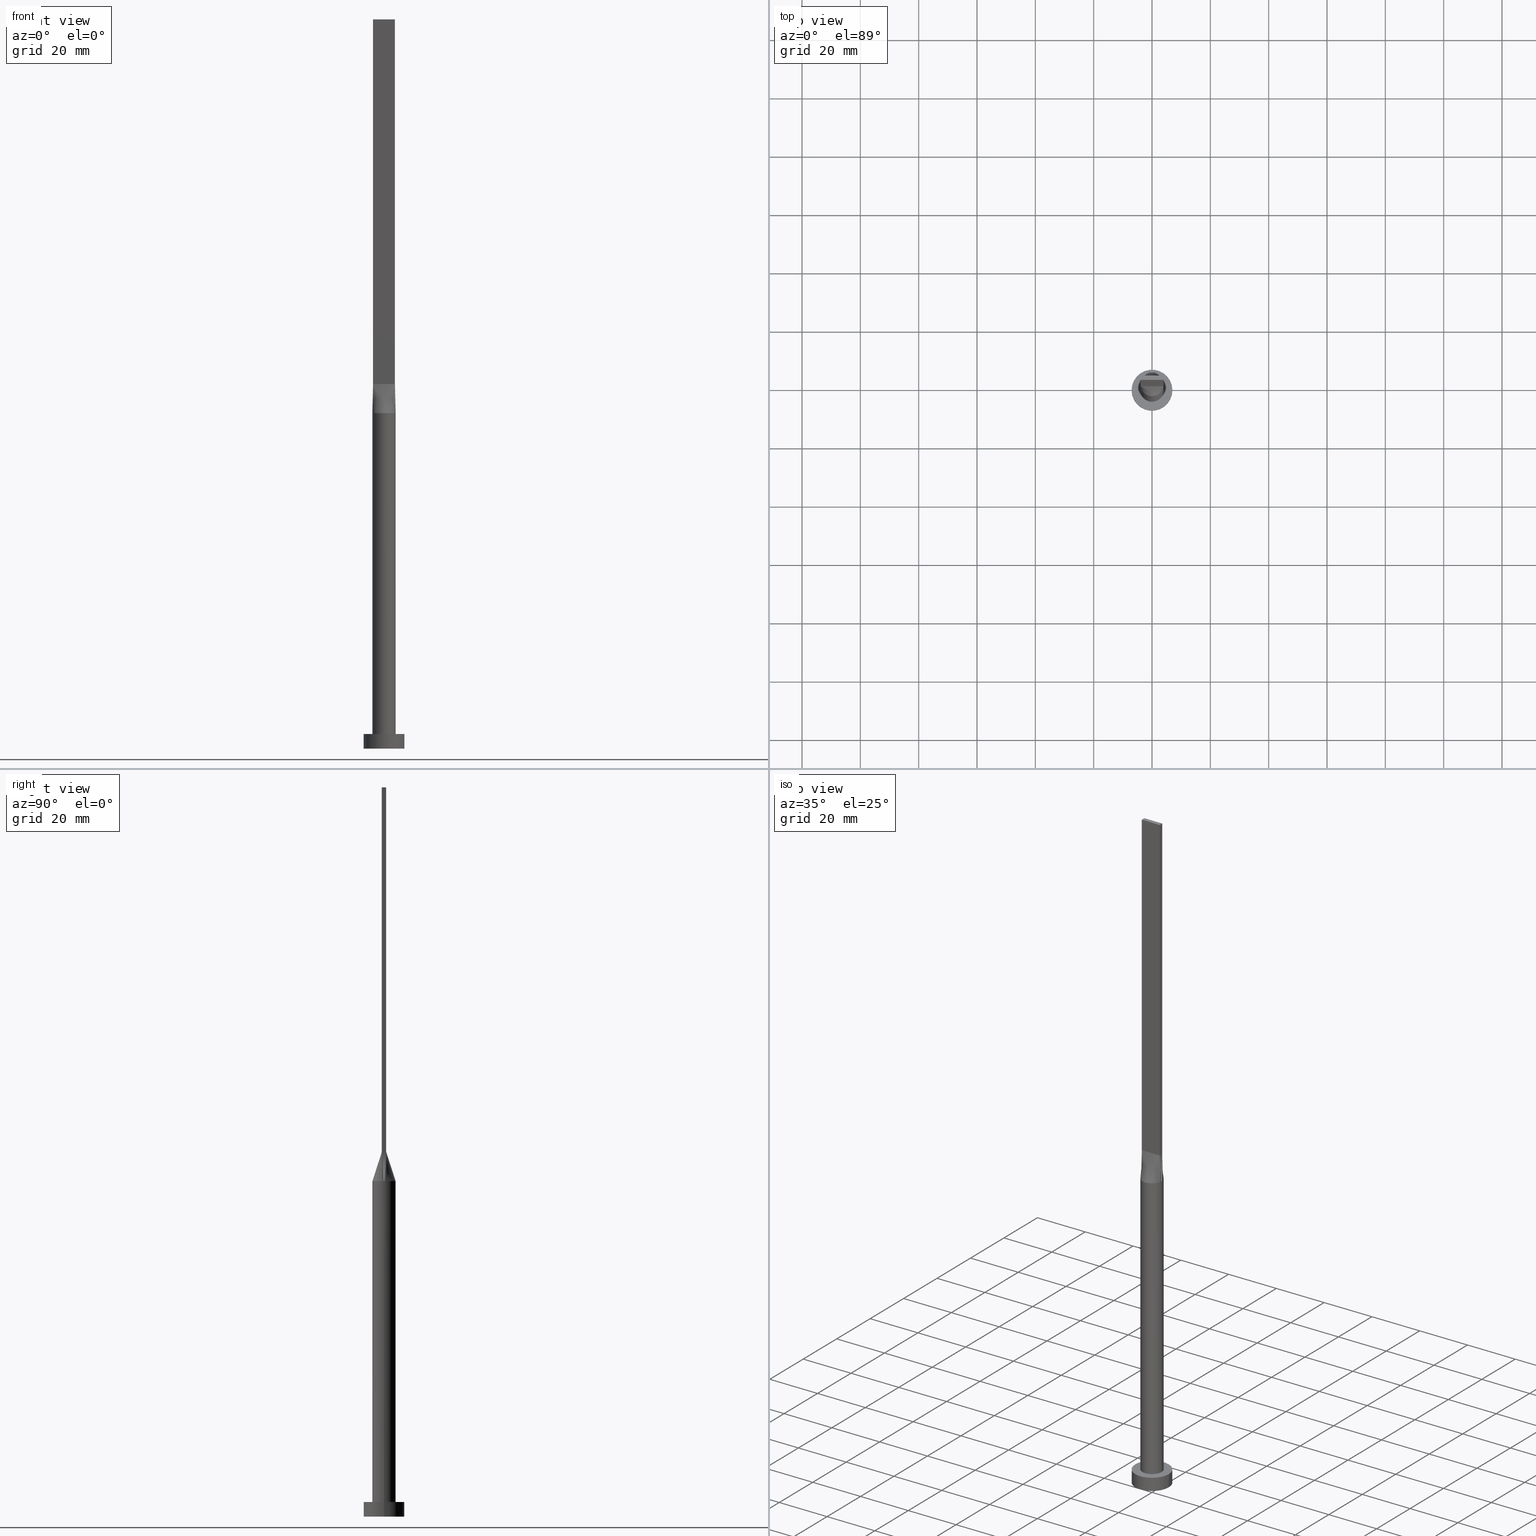
[diagram: canonical four-view strip — front | top / right | iso, engineering-drawing reading convention]
A machine part, canonical four-view strip (front | top / right | iso — engineering-drawing reading convention). The complete STEP part file that produces these views, byte-faithful:
ISO-10303-21;
HEADER;
FILE_DESCRIPTION (( 'STEP AP203' ),
    '1' );
FILE_NAME ('5bd1.STEP',
    '2026-02-12T09:03:20',
    ( '' ),
    ( '' ),
    'SwSTEP 2.0',
    'SolidWorks 2019',
    '' );
FILE_SCHEMA (( 'CONFIG_CONTROL_DESIGN' ));
ENDSEC;

DATA;
#1 = EDGE_CURVE ( 'NONE', #512, #462, #522, .T. ) ;
#2 = DIRECTION ( 'NONE',  ( 1.000000000000000000, 0.000000000000000000, 0.000000000000000000 ) ) ;
#3 = DIRECTION ( 'NONE',  ( 1.000000000000000000, 0.000000000000000000, 0.000000000000000000 ) ) ;
#4 = VECTOR ( 'NONE', #445, 1000.000000000000000 ) ;
#5 = AXIS2_PLACEMENT_3D ( 'NONE', #61, #251, #379 ) ;
#6 = FACE_OUTER_BOUND ( 'NONE', #451, .T. ) ;
#7 = EDGE_CURVE ( 'NONE', #567, #223, #100, .T. ) ;
#8 = CARTESIAN_POINT ( 'NONE',  ( -3.973604754045732435, 0.5280542841424794576, 115.0000000000000000 ) ) ;
#9 = ORIENTED_EDGE ( 'NONE', *, *, #76, .F. ) ;
#10 = CALENDAR_DATE ( 2026, 12, 2 ) ;
#11 = VECTOR ( 'NONE', #374, 1000.000000000000000 ) ;
#12 = CARTESIAN_POINT ( 'NONE',  ( 3.858220138661116128, 1.104977361065556440, 115.0000000000000000 ) ) ;
#13 = CARTESIAN_POINT ( 'NONE',  ( 3.922705552857197908, -0.7845410930675295047, 115.0000000000000000 ) ) ;
#14 = ORIENTED_EDGE ( 'NONE', *, *, #169, .F. ) ;
#15 = CARTESIAN_POINT ( 'NONE',  ( 0.000000000000000000, 0.000000000000000000, 0.000000000000000000 ) ) ;
#16 = VECTOR ( 'NONE', #218, 1000.000000000000000 ) ;
#17 = DIRECTION ( 'NONE',  ( -0.01722960997854780865, -0.003445921995709440040, -0.9998456211643809155 ) ) ;
#18 = CARTESIAN_POINT ( 'NONE',  ( 3.140797583654741487, -2.520780954342107805, 115.0000000000000426 ) ) ;
#19 = VERTEX_POINT ( 'NONE', #63 ) ;
#20 = VERTEX_POINT ( 'NONE', #504 ) ;
#21 = CALENDAR_DATE ( 2026, 12, 2 ) ;
#22 = CARTESIAN_POINT ( 'NONE',  ( -3.750000000000000000, 0.7500000000000002220, 250.0000000000000000 ) ) ;
#23 = VECTOR ( 'NONE', #65, 1000.000000000000000 ) ;
#24 = FACE_OUTER_BOUND ( 'NONE', #59, .T. ) ;
#25 = APPROVAL_ROLE ( '' ) ;
#26 = CARTESIAN_POINT ( 'NONE',  ( 1.250000000000001554, -0.7499999999999995559, 125.0000000000000000 ) ) ;
#27 = EDGE_LOOP ( 'NONE', ( #158, #580, #336, #488 ) ) ;
#28 = DIRECTION ( 'NONE',  ( 0.000000000000000000, 0.000000000000000000, 1.000000000000000000 ) ) ;
#29 =( NAMED_UNIT ( * ) PLANE_ANGLE_UNIT ( ) SI_UNIT ( $, .RADIAN. ) );
#30 = CC_DESIGN_PERSON_AND_ORGANIZATION_ASSIGNMENT ( #332, #452, ( #88 ) ) ;
#31 = ORIENTED_EDGE ( 'NONE', *, *, #576, .T. ) ;
#32 = DIRECTION ( 'NONE',  ( 0.000000000000000000, 0.000000000000000000, 1.000000000000000000 ) ) ;
#33 = DIRECTION ( 'NONE',  ( 0.000000000000000000, 0.000000000000000000, 1.000000000000000000 ) ) ;
#34 = FACE_OUTER_BOUND ( 'NONE', #146, .T. ) ;
#35 = CARTESIAN_POINT ( 'NONE',  ( 3.390424152328988416, -2.159240079384420419, 115.0000000000000711 ) ) ;
#36 = CARTESIAN_POINT ( 'NONE',  ( -3.125000000000000000, 0.7500000000000002220, 125.0000000000000000 ) ) ;
#37 = LOCAL_TIME ( 10, 3, 20.00000000000000000, #194 ) ;
#38 = CC_DESIGN_DATE_AND_TIME_ASSIGNMENT ( #513, #110, ( #88 ) ) ;
#39 = DIRECTION ( 'NONE',  ( -0.000000000000000000, -0.000000000000000000, -1.000000000000000000 ) ) ;
#40 = CARTESIAN_POINT ( 'NONE',  ( 3.437500000000000000, 0.7500000000000003331, 125.0000000000000000 ) ) ;
#41 = ORIENTED_EDGE ( 'NONE', *, *, #455, .T. ) ;
#42 = DIRECTION ( 'NONE',  ( 0.000000000000000000, 0.000000000000000000, 1.000000000000000000 ) ) ;
#43 = VERTEX_POINT ( 'NONE', #560 ) ;
#44 = CARTESIAN_POINT ( 'NONE',  ( 1.250000000000000000, 0.7500000000000002220, 125.0000000000000000 ) ) ;
#45 = CARTESIAN_POINT ( 'NONE',  ( 3.749999999999999556, 0.2500000000000009437, 125.0000000000000000 ) ) ;
#46 = CARTESIAN_POINT ( 'NONE',  ( 0.000000000000000000, 0.000000000000000000, 115.0000000000000000 ) ) ;
#47 = DIRECTION ( 'NONE',  ( 0.000000000000000000, 1.000000000000000000, 0.000000000000000000 ) ) ;
#48 = CIRCLE ( 'NONE', #373, 4.000000000000000000 ) ;
#49 = CARTESIAN_POINT ( 'NONE',  ( -3.749999999999999556, -0.2500000000000005551, 125.0000000000000000 ) ) ;
#50 = EDGE_CURVE ( 'NONE', #254, #19, #151, .T. ) ;
#51 =( GEOMETRIC_REPRESENTATION_CONTEXT ( 3 ) GLOBAL_UNCERTAINTY_ASSIGNED_CONTEXT ( ( #415 ) ) GLOBAL_UNIT_ASSIGNED_CONTEXT ( ( #170, #29, #212 ) ) REPRESENTATION_CONTEXT ( 'NONE', 'WORKASPACE' ) );
#52 = CARTESIAN_POINT ( 'NONE',  ( -3.922322702763681335, 0.7844645405527354010, 115.0000000000000000 ) ) ;
#53 = DIRECTION ( 'NONE',  ( -0.000000000000000000, -0.000000000000000000, -1.000000000000000000 ) ) ;
#54 = CARTESIAN_POINT ( 'NONE',  ( 0.000000000000000000, 0.000000000000000000, 5.000000000000000000 ) ) ;
#55 = EDGE_LOOP ( 'NONE', ( #164, #468, #330, #376 ) ) ;
#56 = APPROVAL_DATE_TIME ( #107, #60 ) ;
#57 = CARTESIAN_POINT ( 'NONE',  ( 3.390424152328985752, 2.159240079384420419, 115.0000000000000284 ) ) ;
#58 = CARTESIAN_POINT ( 'NONE',  ( -3.748423346357938168, -1.451418640363467683, 115.0000000000000426 ) ) ;
#59 = EDGE_LOOP ( 'NONE', ( #543, #530, #96, #294, #70, #193 ) ) ;
#60 = APPROVAL ( #554, 'NEUR�EN�' ) ;
#61 = CARTESIAN_POINT ( 'NONE',  ( 0.000000000000000000, 0.000000000000000000, 5.000000000000000000 ) ) ;
#62 = DATE_AND_TIME ( #10, #272 ) ;
#63 = CARTESIAN_POINT ( 'NONE',  ( -3.750000000000000000, -0.7499999999999993339, 125.0000000000000000 ) ) ;
#64 = CARTESIAN_POINT ( 'NONE',  ( -2.055729527861833272, -3.471178582471582175, 115.0000000000000142 ) ) ;
#65 = DIRECTION ( 'NONE',  ( -0.000000000000000000, -0.000000000000000000, -1.000000000000000000 ) ) ;
#66 = CARTESIAN_POINT ( 'NONE',  ( 2.055729527861832828, -3.471178582471583063, 115.0000000000000284 ) ) ;
#67 = ORIENTED_EDGE ( 'NONE', *, *, #299, .T. ) ;
#68 = EDGE_CURVE ( 'NONE', #280, #43, #412, .T. ) ;
#69 = DIRECTION ( 'NONE',  ( -1.000000000000000000, 5.782411586589357392E-17, 0.000000000000000000 ) ) ;
#70 = ORIENTED_EDGE ( 'NONE', *, *, #76, .T. ) ;
#71 = DIRECTION ( 'NONE',  ( 1.000000000000000000, 0.000000000000000000, -0.000000000000000000 ) ) ;
#72 = DIRECTION ( 'NONE',  ( 5.782411586589357392E-17, 1.000000000000000000, -0.000000000000000000 ) ) ;
#73 = CARTESIAN_POINT ( 'NONE',  ( 0.6249999999999996669, 0.7500000000000002220, 125.0000000000000000 ) ) ;
#74 = CARTESIAN_POINT ( 'NONE',  ( -3.750000000000000000, -0.7499999999999993339, 250.0000000000000000 ) ) ;
#75 = FACE_OUTER_BOUND ( 'NONE', #27, .T. ) ;
#76 = EDGE_CURVE ( 'NONE', #106, #549, #117, .T. ) ;
#77 = CARTESIAN_POINT ( 'NONE',  ( 4.000000000000000000, 4.898587196589412829E-16, 115.0000000000000000 ) ) ;
#78 = CARTESIAN_POINT ( 'NONE',  ( 3.750000000000000000, -0.7499999999999997780, 125.0000000000000000 ) ) ;
#79 = LINE ( 'NONE', #171, #16 ) ;
#80 = ORIENTED_EDGE ( 'NONE', *, *, #576, .F. ) ;
#81 = DIRECTION ( 'NONE',  ( -1.000000000000000000, 0.000000000000000000, 0.000000000000000000 ) ) ;
#82 = VECTOR ( 'NONE', #94, 1000.000000000000000 ) ;
#83 = EDGE_CURVE ( 'NONE', #297, #254, #252, .T. ) ;
#84 = CARTESIAN_POINT ( 'NONE',  ( -0.5465359351457050874, 4.000000000000000000, 115.0000000000000000 ) ) ;
#85 = VERTEX_POINT ( 'NONE', #378 ) ;
#86 = DIRECTION ( 'NONE',  ( 0.000000000000000000, 0.000000000000000000, 1.000000000000000000 ) ) ;
#87 = VECTOR ( 'NONE', #98, 1000.000000000000000 ) ;
#88 = SECURITY_CLASSIFICATION ( '', '', #155 ) ;
#89 = PLANE ( 'NONE',  #216 ) ;
#90 = CARTESIAN_POINT ( 'NONE',  ( -3.858220138661117460, 1.104977361065555996, 115.0000000000000284 ) ) ;
#91 = ORIENTED_EDGE ( 'NONE', *, *, #434, .F. ) ;
#92 = CARTESIAN_POINT ( 'NONE',  ( 3.999245779686757984, -0.2640271420712401729, 115.0000000000000000 ) ) ;
#93 = EDGE_CURVE ( 'NONE', #19, #85, #282, .T. ) ;
#94 = DIRECTION ( 'NONE',  ( -0.01722960997854780865, -0.003445921995709396671, 0.9998456211643809155 ) ) ;
#95 = CARTESIAN_POINT ( 'NONE',  ( 0.000000000000000000, 0.000000000000000000, 5.000000000000000000 ) ) ;
#96 = ORIENTED_EDGE ( 'NONE', *, *, #269, .F. ) ;
#97 = COORDINATED_UNIVERSAL_TIME_OFFSET ( 1, 0, .AHEAD. ) ;
#98 = DIRECTION ( 'NONE',  ( 1.000000000000000000, -5.782411586589357392E-17, 0.000000000000000000 ) ) ;
#99 = ORIENTED_EDGE ( 'NONE', *, *, #393, .T. ) ;
#100 = LINE ( 'NONE', #322, #558 ) ;
#101 = PERSON_AND_ORGANIZATION ( #122, #132 ) ;
#102 = ADVANCED_FACE ( 'NONE', ( #420 ), #340, .T. ) ;
#103 = CARTESIAN_POINT ( 'NONE',  ( -7.000000000000000000, 0.000000000000000000, 5.000000000000000000 ) ) ;
#104 = CARTESIAN_POINT ( 'NONE',  ( 0.000000000000000000, 0.000000000000000000, 115.0000000000000000 ) ) ;
#105 = ORIENTED_EDGE ( 'NONE', *, *, #83, .T. ) ;
#106 = VERTEX_POINT ( 'NONE', #453 ) ;
#107 = DATE_AND_TIME ( #459, #197 ) ;
#108 = AXIS2_PLACEMENT_3D ( 'NONE', #276, #191, #364 ) ;
#109 = DIRECTION ( 'NONE',  ( -0.000000000000000000, -0.000000000000000000, -1.000000000000000000 ) ) ;
#110 = DATE_TIME_ROLE ( 'classification_date' ) ;
#111 = DESIGN_CONTEXT ( 'detailed design', #428, 'design' ) ;
#112 = CIRCLE ( 'NONE', #546, 4.000000000000000000 ) ;
#113 = VECTOR ( 'NONE', #201, 1000.000000000000000 ) ;
#114 = CARTESIAN_POINT ( 'NONE',  ( -3.437499999999999556, -0.7499999999999993339, 125.0000000000000000 ) ) ;
#115 = ORIENTED_EDGE ( 'NONE', *, *, #50, .T. ) ;
#116 = ORIENTED_EDGE ( 'NONE', *, *, #220, .T. ) ;
#117 = LINE ( 'NONE', #295, #23 ) ;
#118 = CARTESIAN_POINT ( 'NONE',  ( 0.000000000000000000, 0.000000000000000000, 5.000000000000000000 ) ) ;
#119 = ORIENTED_EDGE ( 'NONE', *, *, #68, .F. ) ;
#120 = CC_DESIGN_DATE_AND_TIME_ASSIGNMENT ( #449, #200, ( #240 ) ) ;
#121 = CARTESIAN_POINT ( 'NONE',  ( -2.474203369347176107, -3.177619198138197820, 115.0000000000000000 ) ) ;
#122 = PERSON ( 'NEUR�EN�', 'NEUR�EN�', 'NEUR�EN�', ('NEUR�EN�'), ('NEUR�EN�'), ('NEUR�EN�') ) ;
#123 = B_SPLINE_SURFACE_WITH_KNOTS ( 'NONE', 3, 1, ( 
 ( #222, #429 ),
 ( #426, #40 ),
 ( #177, #569 ),
 ( #303, #481 ),
 ( #215, #267 ),
 ( #577, #345 ),
 ( #437, #44 ),
 ( #301, #73 ),
 ( #390, #128 ),
 ( #259, #134 ),
 ( #219, #432 ),
 ( #574, #350 ),
 ( #524, #389 ),
 ( #528, #130 ),
 ( #175, #486 ),
 ( #352, #36 ),
 ( #174, #168 ),
 ( #307, #483 ) ),
 .UNSPECIFIED., .F., .F., .F.,
 ( 4, 2, 2, 2, 2, 2, 2, 2, 4 ),
 ( 2, 2 ),
 ( 0.000000000000000000, 0.1249999999999999167, 0.2499999999999998890, 0.3749999999999998335, 0.4999999999999998890, 0.6249999999999998890, 0.7499999999999998890, 0.8750000000000000000, 1.000000000000000000 ),
 ( 0.000000000000000000, 1.000000000000000000 ),
 .UNSPECIFIED. ) ;
#124 = CARTESIAN_POINT ( 'NONE',  ( 3.922322702763681335, -0.7844645405527340687, 115.0000000000000000 ) ) ;
#125 = DIRECTION ( 'NONE',  ( 1.000000000000000000, 0.000000000000000000, 0.000000000000000000 ) ) ;
#126 = PRODUCT_RELATED_PRODUCT_CATEGORY ( 'detail', '', ( #561 ) ) ;
#127 = CARTESIAN_POINT ( 'NONE',  ( 3.750000000000000000, 0.7500000000000002220, 250.0000000000000000 ) ) ;
#128 = CARTESIAN_POINT ( 'NONE',  ( 0.3124999999999991673, 0.7500000000000003331, 125.0000000000000000 ) ) ;
#129 = CARTESIAN_POINT ( 'NONE',  ( 3.750000000000000000, 0.7500000000000002220, 250.0000000000000000 ) ) ;
#130 = CARTESIAN_POINT ( 'NONE',  ( -2.187500000000000000, 0.7500000000000002220, 125.0000000000000000 ) ) ;
#131 = CIRCLE ( 'NONE', #147, 4.000000000000000000 ) ;
#132 = ORGANIZATION ( 'NEUR�EN�', 'NEUR�EN�', '' ) ;
#133 = ORIENTED_EDGE ( 'NONE', *, *, #398, .F. ) ;
#134 = CARTESIAN_POINT ( 'NONE',  ( -0.3125000000000009437, 0.7500000000000003331, 125.0000000000000000 ) ) ;
#135 = CC_DESIGN_PERSON_AND_ORGANIZATION_ASSIGNMENT ( #293, #285, ( #240 ) ) ;
#136 = EDGE_LOOP ( 'NONE', ( #199, #153, #116, #99 ) ) ;
#137 = DIRECTION ( 'NONE',  ( 1.000000000000000000, 0.000000000000000000, -0.000000000000000000 ) ) ;
#138 = CARTESIAN_POINT ( 'NONE',  ( -3.922691944042750123, 0.7845383302616953936, 115.0000000000000000 ) ) ;
#139 = CARTESIAN_POINT ( 'NONE',  ( 3.999245779686757984, 0.2640271420712392292, 115.0000000000000000 ) ) ;
#140 = APPROVAL_PERSON_ORGANIZATION ( #559, #310, #159 ) ;
#141 = EDGE_CURVE ( 'NONE', #458, #356, #430, .T. ) ;
#142 = CARTESIAN_POINT ( 'NONE',  ( -3.922322702763681335, -0.7844645405527344018, 115.0000000000000000 ) ) ;
#143 = CARTESIAN_POINT ( 'NONE',  ( 2.055729527861830608, 3.471178582471582619, 114.9999999999999858 ) ) ;
#144 = CARTESIAN_POINT ( 'NONE',  ( -3.922691944042750123, 0.7845383302616953936, 115.0000000000000000 ) ) ;
#145 = DIRECTION ( 'NONE',  ( 1.000000000000000000, 0.000000000000000000, 0.000000000000000000 ) ) ;
#146 = EDGE_LOOP ( 'NONE', ( #287, #133 ) ) ;
#147 = AXIS2_PLACEMENT_3D ( 'NONE', #225, #33, #383 ) ;
#148 = CIRCLE ( 'NONE', #290, 4.000000000000000000 ) ;
#149 = CARTESIAN_POINT ( 'NONE',  ( -1.562499999999998446, -0.7499999999999993339, 125.0000000000000000 ) ) ;
#150 = ADVANCED_FACE ( 'NONE', ( #184 ), #181, .T. ) ;
#151 = LINE ( 'NONE', #471, #204 ) ;
#152 = DIRECTION ( 'NONE',  ( 1.000000000000000000, 0.000000000000000000, 0.000000000000000000 ) ) ;
#153 = ORIENTED_EDGE ( 'NONE', *, *, #469, .T. ) ;
#154 = ORIENTED_EDGE ( 'NONE', *, *, #269, .T. ) ;
#155 = SECURITY_CLASSIFICATION_LEVEL ( 'unclassified' ) ;
#156 = VECTOR ( 'NONE', #39, 1000.000000000000000 ) ;
#157 = LINE ( 'NONE', #375, #291 ) ;
#158 = ORIENTED_EDGE ( 'NONE', *, *, #141, .T. ) ;
#159 = APPROVAL_ROLE ( '' ) ;
#160 = CARTESIAN_POINT ( 'NONE',  ( -0.3124999999999987788, -0.7499999999999993339, 125.0000000000000000 ) ) ;
#161 = ORIENTED_EDGE ( 'NONE', *, *, #50, .F. ) ;
#162 = EDGE_CURVE ( 'NONE', #462, #458, #48, .T. ) ;
#163 = PERSON_AND_ORGANIZATION ( #122, #132 ) ;
#164 = ORIENTED_EDGE ( 'NONE', *, *, #355, .T. ) ;
#165 = CARTESIAN_POINT ( 'NONE',  ( -3.750000000000000000, -0.7499999999999993339, 125.0000000000000000 ) ) ;
#166 = VECTOR ( 'NONE', #579, 1000.000000000000000 ) ;
#167 = CARTESIAN_POINT ( 'NONE',  ( 3.750000000000000000, -0.7499999999999997780, 250.0000000000000000 ) ) ;
#168 = CARTESIAN_POINT ( 'NONE',  ( -3.437500000000000000, 0.7500000000000002220, 125.0000000000000000 ) ) ;
#169 = EDGE_CURVE ( 'NONE', #367, #19, #537, .T. ) ;
#170 =( LENGTH_UNIT ( ) NAMED_UNIT ( * ) SI_UNIT ( .MILLI., .METRE. ) );
#171 = CARTESIAN_POINT ( 'NONE',  ( 3.750000000000000000, 0.7500000000000002220, 250.0000000000000000 ) ) ;
#172 = DIRECTION ( 'NONE',  ( 0.000000000000000000, 0.000000000000000000, 1.000000000000000000 ) ) ;
#173 = CARTESIAN_POINT ( 'NONE',  ( 2.500000000000000444, -0.7499999999999996669, 125.0000000000000000 ) ) ;
#174 = CARTESIAN_POINT ( 'NONE',  ( -3.858220138661117460, 1.104977361065555996, 115.0000000000000284 ) ) ;
#175 = CARTESIAN_POINT ( 'NONE',  ( -3.390424152328988416, 2.159240079384419975, 115.0000000000000284 ) ) ;
#176 = ORIENTED_EDGE ( 'NONE', *, *, #369, .T. ) ;
#177 = CARTESIAN_POINT ( 'NONE',  ( 3.748423346357935948, 1.451418640363468349, 115.0000000000000142 ) ) ;
#178 = VECTOR ( 'NONE', #519, 1000.000000000000000 ) ;
#179 = ORIENTED_EDGE ( 'NONE', *, *, #93, .F. ) ;
#180 = CARTESIAN_POINT ( 'NONE',  ( -3.999245779686757984, -0.2640271420712390071, 115.0000000000000000 ) ) ;
#181 = CYLINDRICAL_SURFACE ( 'NONE', #433, 7.000000000000000000 ) ;
#182 = CARTESIAN_POINT ( 'NONE',  ( -2.055729527861832828, 3.471178582471583063, 114.9999999999999432 ) ) ;
#183 = CARTESIAN_POINT ( 'NONE',  ( 3.750000000000000000, -0.7499999999999997780, 250.0000000000000000 ) ) ;
#184 = FACE_OUTER_BOUND ( 'NONE', #440, .T. ) ;
#185 = EDGE_CURVE ( 'NONE', #462, #532, #388, .T. ) ;
#186 = CARTESIAN_POINT ( 'NONE',  ( -3.750000000000000000, -0.7499999999999993339, 125.0000000000000000 ) ) ;
#187 = CIRCLE ( 'NONE', #517, 7.000000000000000000 ) ;
#188 = AXIS2_PLACEMENT_3D ( 'NONE', #104, #505, #372 ) ;
#189 = CARTESIAN_POINT ( 'NONE',  ( -3.749999999999999556, 0.2499999999999993061, 125.0000000000000000 ) ) ;
#190 = DIRECTION ( 'NONE',  ( 1.000000000000000000, 0.000000000000000000, 0.000000000000000000 ) ) ;
#191 = DIRECTION ( 'NONE',  ( 0.000000000000000000, 0.000000000000000000, 1.000000000000000000 ) ) ;
#192 = CARTESIAN_POINT ( 'NONE',  ( -3.858220138661117460, -1.104977361065555774, 114.9999999999999858 ) ) ;
#193 = ORIENTED_EDGE ( 'NONE', *, *, #338, .T. ) ;
#194 = COORDINATED_UNIVERSAL_TIME_OFFSET ( 1, 0, .AHEAD. ) ;
#195 = B_SPLINE_SURFACE_WITH_KNOTS ( 'NONE', 3, 1, ( 
 ( #457, #165 ),
 ( #192, #114 ),
 ( #58, #292 ),
 ( #241, #466 ),
 ( #521, #337 ),
 ( #121, #149 ),
 ( #64, #562 ),
 ( #242, #406 ),
 ( #370, #160 ),
 ( #198, #333 ),
 ( #324, #296 ),
 ( #66, #26 ),
 ( #366, #298 ),
 ( #18, #568 ),
 ( #35, #173 ),
 ( #257, #523 ),
 ( #214, #302 ),
 ( #124, #344 ) ),
 .UNSPECIFIED., .F., .F., .F.,
 ( 4, 2, 2, 2, 2, 2, 2, 2, 4 ),
 ( 2, 2 ),
 ( 0.000000000000000000, 0.1249999999999999722, 0.2500000000000000000, 0.3750000000000000000, 0.5000000000000001110, 0.6250000000000001110, 0.7500000000000000000, 0.8750000000000000000, 1.000000000000000000 ),
 ( 0.000000000000000000, 1.000000000000000000 ),
 .UNSPECIFIED. ) ;
#196 = ADVANCED_FACE ( 'NONE', ( #34 ), #262, .F. ) ;
#197 = LOCAL_TIME ( 10, 3, 20.00000000000000000, #281 ) ;
#198 = CARTESIAN_POINT ( 'NONE',  ( 0.5465359351457046433, -4.000000000000000888, 115.0000000000000284 ) ) ;
#199 = ORIENTED_EDGE ( 'NONE', *, *, #288, .T. ) ;
#200 = DATE_TIME_ROLE ( 'creation_date' ) ;
#201 = DIRECTION ( 'NONE',  ( -0.01722960997854780865, 0.003445921995709364145, 0.9998456211643809155 ) ) ;
#202 = EDGE_LOOP ( 'NONE', ( #176, #256, #179, #161, #266 ) ) ;
#203 = DIRECTION ( 'NONE',  ( 0.000000000000000000, 0.000000000000000000, 1.000000000000000000 ) ) ;
#204 = VECTOR ( 'NONE', #326, 1000.000000000000000 ) ;
#205 = EDGE_CURVE ( 'NONE', #458, #297, #503, .T. ) ;
#206 = CARTESIAN_POINT ( 'NONE',  ( 0.000000000000000000, 0.000000000000000000, 5.000000000000000000 ) ) ;
#207 = DATE_AND_TIME ( #277, #401 ) ;
#208 = AXIS2_PLACEMENT_3D ( 'NONE', #54, #392, #3 ) ;
#209 = DIRECTION ( 'NONE',  ( -1.000000000000000000, -0.000000000000000000, -0.000000000000000000 ) ) ;
#210 = LINE ( 'NONE', #410, #178 ) ;
#211 = VERTEX_POINT ( 'NONE', #304 ) ;
#212 =( NAMED_UNIT ( * ) SI_UNIT ( $, .STERADIAN. ) SOLID_ANGLE_UNIT ( ) );
#213 = ADVANCED_FACE ( 'NONE', ( #526 ), #531, .F. ) ;
#214 = CARTESIAN_POINT ( 'NONE',  ( 3.858220138661117016, -1.104977361065556662, 115.0000000000000142 ) ) ;
#215 = CARTESIAN_POINT ( 'NONE',  ( 3.140797583654741931, 2.520780954342106028, 114.9999999999999858 ) ) ;
#216 = AXIS2_PLACEMENT_3D ( 'NONE', #95, #230, #137 ) ;
#217 = FACE_OUTER_BOUND ( 'NONE', #557, .T. ) ;
#218 = DIRECTION ( 'NONE',  ( -1.000000000000000000, 0.000000000000000000, 0.000000000000000000 ) ) ;
#219 = CARTESIAN_POINT ( 'NONE',  ( -1.091295599582913445, 3.883835547170275682, 115.0000000000000142 ) ) ;
#220 = EDGE_CURVE ( 'NONE', #367, #567, #348, .T. ) ;
#221 = ORIENTED_EDGE ( 'NONE', *, *, #398, .T. ) ;
#222 = CARTESIAN_POINT ( 'NONE',  ( 3.922322702763680446, 0.7844645405527360671, 115.0000000000000000 ) ) ;
#223 = VERTEX_POINT ( 'NONE', #78 ) ;
#224 = CIRCLE ( 'NONE', #446, 4.000000000000000000 ) ;
#225 = CARTESIAN_POINT ( 'NONE',  ( 0.000000000000000000, 0.000000000000000000, 115.0000000000000000 ) ) ;
#226 = DIRECTION ( 'NONE',  ( 0.000000000000000000, 0.000000000000000000, 1.000000000000000000 ) ) ;
#227 = AXIS2_PLACEMENT_3D ( 'NONE', #118, #566, #403 ) ;
#228 = VECTOR ( 'NONE', #461, 1000.000000000000000 ) ;
#229 = CARTESIAN_POINT ( 'NONE',  ( 0.5465359351457045323, 4.000000000000000888, 115.0000000000000426 ) ) ;
#230 = DIRECTION ( 'NONE',  ( 0.000000000000000000, 0.000000000000000000, 1.000000000000000000 ) ) ;
#231 = DIRECTION ( 'NONE',  ( 1.000000000000000000, 0.000000000000000000, 0.000000000000000000 ) ) ;
#232 = CC_DESIGN_PERSON_AND_ORGANIZATION_ASSIGNMENT ( #365, #408, ( #525 ) ) ;
#233 = CARTESIAN_POINT ( 'NONE',  ( -3.390424152328988416, 2.159240079384419975, 115.0000000000000284 ) ) ;
#234 = CARTESIAN_POINT ( 'NONE',  ( 3.750000000000000000, 0.7500000000000002220, 125.0000000000000000 ) ) ;
#235 = LINE ( 'NONE', #413, #113 ) ;
#236 = VECTOR ( 'NONE', #382, 1000.000000000000000 ) ;
#237 = CARTESIAN_POINT ( 'NONE',  ( -3.750000000000000000, 0.7500000000000002220, 125.0000000000000000 ) ) ;
#238 = ORIENTED_EDGE ( 'NONE', *, *, #1, .T. ) ;
#239 = APPROVAL_STATUS ( 'not_yet_approved' ) ;
#240 = PRODUCT_DEFINITION ( 'NEZN�M�', '', #525, #111 ) ;
#241 = CARTESIAN_POINT ( 'NONE',  ( -3.390424152328987528, -2.159240079384418642, 114.9999999999999858 ) ) ;
#242 = CARTESIAN_POINT ( 'NONE',  ( -1.091295599582913445, -3.883835547170274349, 114.9999999999999858 ) ) ;
#243 = ORIENTED_EDGE ( 'NONE', *, *, #529, .F. ) ;
#244 = ORIENTED_EDGE ( 'NONE', *, *, #369, .F. ) ;
#245 = APPROVAL_STATUS ( 'not_yet_approved' ) ;
#246 = AXIS2_PLACEMENT_3D ( 'NONE', #263, #309, #81 ) ;
#247 = DIRECTION ( 'NONE',  ( 0.000000000000000000, 0.000000000000000000, 1.000000000000000000 ) ) ;
#248 = ORIENTED_EDGE ( 'NONE', *, *, #393, .F. ) ;
#249 = APPROVAL_DATE_TIME ( #62, #424 ) ;
#250 = EDGE_CURVE ( 'NONE', #106, #85, #148, .T. ) ;
#251 = DIRECTION ( 'NONE',  ( 0.000000000000000000, 0.000000000000000000, 1.000000000000000000 ) ) ;
#252 = LINE ( 'NONE', #417, #396 ) ;
#253 = CARTESIAN_POINT ( 'NONE',  ( 7.000000000000000000, 8.572527594031473190E-16, 0.000000000000000000 ) ) ;
#254 = VERTEX_POINT ( 'NONE', #423 ) ;
#255 = FACE_OUTER_BOUND ( 'NONE', #55, .T. ) ;
#256 = ORIENTED_EDGE ( 'NONE', *, *, #250, .T. ) ;
#257 = CARTESIAN_POINT ( 'NONE',  ( 3.748423346357937280, -1.451418640363469015, 115.0000000000000284 ) ) ;
#258 = ADVANCED_FACE ( 'NONE', ( #482 ), #342, .T. ) ;
#259 = CARTESIAN_POINT ( 'NONE',  ( -0.5465359351457050874, 4.000000000000000000, 115.0000000000000000 ) ) ;
#260 = DIRECTION ( 'NONE',  ( 0.000000000000000000, -0.000000000000000000, -1.000000000000000000 ) ) ;
#261 = ADVANCED_BREP_SHAPE_REPRESENTATION ( '5bd1', ( #575, #343 ), #51 ) ;
#262 = PLANE ( 'NONE',  #339 ) ;
#263 = CARTESIAN_POINT ( 'NONE',  ( 0.000000000000000000, 0.000000000000000000, 115.0000000000000000 ) ) ;
#264 = ADVANCED_FACE ( 'NONE', ( #75 ), #123, .T. ) ;
#265 = DIRECTION ( 'NONE',  ( 0.000000000000000000, -1.000000000000000000, 0.000000000000000000 ) ) ;
#266 = ORIENTED_EDGE ( 'NONE', *, *, #535, .F. ) ;
#267 = CARTESIAN_POINT ( 'NONE',  ( 2.187500000000000000, 0.7500000000000002220, 125.0000000000000000 ) ) ;
#268 = ORIENTED_EDGE ( 'NONE', *, *, #444, .T. ) ;
#269 = EDGE_CURVE ( 'NONE', #85, #512, #131, .T. ) ;
#270 = DIRECTION ( 'NONE',  ( 0.000000000000000000, 0.000000000000000000, 1.000000000000000000 ) ) ;
#271 = CARTESIAN_POINT ( 'NONE',  ( 0.000000000000000000, 0.000000000000000000, 5.000000000000000000 ) ) ;
#272 = LOCAL_TIME ( 10, 3, 20.00000000000000000, #465 ) ;
#273 = CARTESIAN_POINT ( 'NONE',  ( 0.000000000000000000, 0.000000000000000000, 5.000000000000000000 ) ) ;
#274 = CARTESIAN_POINT ( 'NONE',  ( -3.750000000000000000, -0.7499999999999993339, 250.0000000000000000 ) ) ;
#275 = DIRECTION ( 'NONE',  ( -0.000000000000000000, 0.000000000000000000, -1.000000000000000000 ) ) ;
#276 = CARTESIAN_POINT ( 'NONE',  ( 0.000000000000000000, 0.000000000000000000, 115.0000000000000000 ) ) ;
#277 = CALENDAR_DATE ( 2026, 12, 2 ) ;
#278 = CIRCLE ( 'NONE', #358, 7.000000000000000000 ) ;
#279 = CARTESIAN_POINT ( 'NONE',  ( -3.750000000000000000, -0.7499999999999993339, 125.0000000000000000 ) ) ;
#280 = VERTEX_POINT ( 'NONE', #572 ) ;
#281 = COORDINATED_UNIVERSAL_TIME_OFFSET ( 1, 0, .AHEAD. ) ;
#282 = LINE ( 'NONE', #454, #349 ) ;
#283 = LINE ( 'NONE', #286, #228 ) ;
#284 = ORIENTED_EDGE ( 'NONE', *, *, #205, .T. ) ;
#285 = PERSON_AND_ORGANIZATION_ROLE ( 'creator' ) ;
#286 = CARTESIAN_POINT ( 'NONE',  ( 3.750000000000000000, 0.7500000000000002220, 125.0000000000000000 ) ) ;
#287 = ORIENTED_EDGE ( 'NONE', *, *, #347, .F. ) ;
#288 = EDGE_CURVE ( 'NONE', #506, #211, #79, .T. ) ;
#289 = PERSON_AND_ORGANIZATION ( #122, #132 ) ;
#290 = AXIS2_PLACEMENT_3D ( 'NONE', #478, #42, #125 ) ;
#291 = VECTOR ( 'NONE', #109, 1000.000000000000000 ) ;
#292 = CARTESIAN_POINT ( 'NONE',  ( -3.124999999999999112, -0.7499999999999993339, 125.0000000000000000 ) ) ;
#293 = PERSON_AND_ORGANIZATION ( #122, #132 ) ;
#294 = ORIENTED_EDGE ( 'NONE', *, *, #250, .F. ) ;
#295 = CARTESIAN_POINT ( 'NONE',  ( -4.000000000000000000, 0.000000000000000000, 115.0000000000000000 ) ) ;
#296 = CARTESIAN_POINT ( 'NONE',  ( 0.6250000000000016653, -0.7499999999999994449, 125.0000000000000000 ) ) ;
#297 = VERTEX_POINT ( 'NONE', #387 ) ;
#298 = CARTESIAN_POINT ( 'NONE',  ( 1.562500000000001110, -0.7499999999999995559, 125.0000000000000000 ) ) ;
#299 = EDGE_CURVE ( 'NONE', #280, #20, #498, .T. ) ;
#300 = CARTESIAN_POINT ( 'NONE',  ( -4.000000000000000000, 0.000000000000000000, 5.000000000000000000 ) ) ;
#301 = CARTESIAN_POINT ( 'NONE',  ( 1.091295599582912113, 3.883835547170277014, 115.0000000000000284 ) ) ;
#302 = CARTESIAN_POINT ( 'NONE',  ( 3.437500000000000000, -0.7499999999999997780, 125.0000000000000000 ) ) ;
#303 = CARTESIAN_POINT ( 'NONE',  ( 3.390424152328985752, 2.159240079384420419, 115.0000000000000284 ) ) ;
#304 = CARTESIAN_POINT ( 'NONE',  ( -3.750000000000000000, 0.7500000000000002220, 250.0000000000000000 ) ) ;
#305 = ADVANCED_FACE ( 'NONE', ( #542 ), #480, .T. ) ;
#306 = CC_DESIGN_APPROVAL ( #60, ( #240 ) ) ;
#307 = CARTESIAN_POINT ( 'NONE',  ( -3.922322702763681335, 0.7844645405527345128, 115.0000000000000000 ) ) ;
#308 = ORIENTED_EDGE ( 'NONE', *, *, #288, .F. ) ;
#309 = DIRECTION ( 'NONE',  ( -0.000000000000000000, -0.000000000000000000, -1.000000000000000000 ) ) ;
#310 = APPROVAL ( #245, 'NEUR�EN�' ) ;
#311 = ORIENTED_EDGE ( 'NONE', *, *, #68, .T. ) ;
#312 = CARTESIAN_POINT ( 'NONE',  ( 0.000000000000000000, 0.000000000000000000, 0.000000000000000000 ) ) ;
#313 = CARTESIAN_POINT ( 'NONE',  ( -3.750000000000000000, -0.7499999999999993339, 250.0000000000000000 ) ) ;
#314 = CARTESIAN_POINT ( 'NONE',  ( -3.140797583654740599, 2.520780954342106916, 114.9999999999999716 ) ) ;
#315 = CARTESIAN_POINT ( 'NONE',  ( 3.922322702763681335, 0.7844645405527348458, 115.0000000000000000 ) ) ;
#316 = APPROVAL_PERSON_ORGANIZATION ( #289, #424, #25 ) ;
#317 = EDGE_LOOP ( 'NONE', ( #475, #520, #563, #9, #244, #493 ) ) ;
#318 = CARTESIAN_POINT ( 'NONE',  ( 3.973604754045732435, 0.5280542841424789025, 115.0000000000000000 ) ) ;
#319 = CARTESIAN_POINT ( 'NONE',  ( 3.973604754045732435, -0.5280542841424799017, 115.0000000000000000 ) ) ;
#320 = CC_DESIGN_PERSON_AND_ORGANIZATION_ASSIGNMENT ( #551, #507, ( #561 ) ) ;
#321 = CARTESIAN_POINT ( 'NONE',  ( 3.749999999999999556, 0.5000000000000006661, 125.0000000000000000 ) ) ;
#322 = CARTESIAN_POINT ( 'NONE',  ( 3.750000000000000000, -0.7499999999999997780, 250.0000000000000000 ) ) ;
#323 = DIRECTION ( 'NONE',  ( 1.000000000000000000, 0.000000000000000000, 0.000000000000000000 ) ) ;
#324 = CARTESIAN_POINT ( 'NONE',  ( 1.091295599582912557, -3.883835547170275682, 115.0000000000000142 ) ) ;
#325 = ADVANCED_FACE ( 'NONE', ( #489 ), #533, .F. ) ;
#326 = DIRECTION ( 'NONE',  ( 0.000000000000000000, -1.000000000000000000, 0.000000000000000000 ) ) ;
#327 = FACE_OUTER_BOUND ( 'NONE', #381, .T. ) ;
#328 = CALENDAR_DATE ( 2026, 12, 2 ) ;
#329 = DIRECTION ( 'NONE',  ( 0.000000000000000000, -1.000000000000000000, 0.000000000000000000 ) ) ;
#330 = ORIENTED_EDGE ( 'NONE', *, *, #220, .F. ) ;
#331 = ORIENTED_EDGE ( 'NONE', *, *, #416, .T. ) ;
#332 = PERSON_AND_ORGANIZATION ( #122, #132 ) ;
#333 = CARTESIAN_POINT ( 'NONE',  ( 0.3125000000000014433, -0.7499999999999994449, 125.0000000000000000 ) ) ;
#334 = ORIENTED_EDGE ( 'NONE', *, *, #434, .T. ) ;
#335 = PERSON_AND_ORGANIZATION_ROLE ( 'creator' ) ;
#336 = ORIENTED_EDGE ( 'NONE', *, *, #83, .F. ) ;
#337 = CARTESIAN_POINT ( 'NONE',  ( -2.187499999999998668, -0.7499999999999993339, 125.0000000000000000 ) ) ;
#338 = EDGE_CURVE ( 'NONE', #549, #532, #224, .T. ) ;
#339 = AXIS2_PLACEMENT_3D ( 'NONE', #386, #172, #346 ) ;
#340 = PLANE ( 'NONE',  #425 ) ;
#341 = LINE ( 'NONE', #127, #236 ) ;
#342 = CYLINDRICAL_SURFACE ( 'NONE', #246, 4.000000000000000000 ) ;
#343 = AXIS2_PLACEMENT_3D ( 'NONE', #15, #203, #323 ) ;
#344 = CARTESIAN_POINT ( 'NONE',  ( 3.750000000000000000, -0.7499999999999997780, 125.0000000000000000 ) ) ;
#345 = CARTESIAN_POINT ( 'NONE',  ( 1.562500000000000000, 0.7500000000000002220, 125.0000000000000000 ) ) ;
#346 = DIRECTION ( 'NONE',  ( 1.000000000000000000, 0.000000000000000000, -0.000000000000000000 ) ) ;
#347 = EDGE_CURVE ( 'NONE', #43, #473, #278, .T. ) ;
#348 = LINE ( 'NONE', #527, #166 ) ;
#349 = VECTOR ( 'NONE', #17, 1000.000000000000000 ) ;
#350 = CARTESIAN_POINT ( 'NONE',  ( -1.250000000000000222, 0.7500000000000002220, 125.0000000000000000 ) ) ;
#351 = ORIENTED_EDGE ( 'NONE', *, *, #7, .T. ) ;
#352 = CARTESIAN_POINT ( 'NONE',  ( -3.748423346357937280, 1.451418640363469015, 115.0000000000000284 ) ) ;
#353 = EDGE_LOOP ( 'NONE', ( #105, #550, #308, #31 ) ) ;
#354 = CARTESIAN_POINT ( 'NONE',  ( 0.000000000000000000, 0.000000000000000000, 0.000000000000000000 ) ) ;
#355 = EDGE_CURVE ( 'NONE', #19, #223, #402, .T. ) ;
#356 = VERTEX_POINT ( 'NONE', #144 ) ;
#357 = LINE ( 'NONE', #536, #4 ) ;
#358 = AXIS2_PLACEMENT_3D ( 'NONE', #354, #495, #145 ) ;
#359 = DIRECTION ( 'NONE',  ( 1.000000000000000000, 0.000000000000000000, -0.000000000000000000 ) ) ;
#360 = ADVANCED_FACE ( 'NONE', ( #6 ), #470, .T. ) ;
#361 = CARTESIAN_POINT ( 'NONE',  ( -3.973604754045732435, -0.5280542841424784584, 115.0000000000000000 ) ) ;
#362 = CARTESIAN_POINT ( 'NONE',  ( 3.922322702763681335, -0.7844645405527358450, 115.0000000000000000 ) ) ;
#363 = CLOSED_SHELL ( 'NONE', ( #258, #476, #150, #384, #196, #491, #545, #360, #305, #264, #213, #325, #555, #570, #102 ) ) ;
#364 = DIRECTION ( 'NONE',  ( 1.000000000000000000, -1.421085471520200372E-14, 0.000000000000000000 ) ) ;
#365 = PERSON_AND_ORGANIZATION ( #122, #132 ) ;
#366 = CARTESIAN_POINT ( 'NONE',  ( 2.474203369347176995, -3.177619198138200041, 115.0000000000000426 ) ) ;
#367 = VERTEX_POINT ( 'NONE', #274 ) ;
#368 = APPROVAL_ROLE ( '' ) ;
#369 = EDGE_CURVE ( 'NONE', #356, #106, #112, .T. ) ;
#370 = CARTESIAN_POINT ( 'NONE',  ( -0.5465359351457051984, -4.000000000000000888, 115.0000000000000000 ) ) ;
#371 = MECHANICAL_CONTEXT ( 'NONE', #405, 'mechanical' ) ;
#372 = DIRECTION ( 'NONE',  ( -1.000000000000000000, 0.000000000000000000, 0.000000000000000000 ) ) ;
#373 = AXIS2_PLACEMENT_3D ( 'NONE', #46, #226, #231 ) ;
#374 = DIRECTION ( 'NONE',  ( -0.000000000000000000, -0.000000000000000000, -1.000000000000000000 ) ) ;
#375 = CARTESIAN_POINT ( 'NONE',  ( 7.000000000000000000, 8.572527594031473190E-16, 5.000000000000000000 ) ) ;
#376 = ORIENTED_EDGE ( 'NONE', *, *, #169, .T. ) ;
#377 = CIRCLE ( 'NONE', #547, 4.000000000000000000 ) ;
#378 = CARTESIAN_POINT ( 'NONE',  ( -3.922691619086878134, -0.7845384300002018474, 115.0000000000000000 ) ) ;
#379 = DIRECTION ( 'NONE',  ( 1.000000000000000000, 0.000000000000000000, 0.000000000000000000 ) ) ;
#380 = EDGE_LOOP ( 'NONE', ( #154, #334, #421, #500 ) ) ;
#381 = EDGE_LOOP ( 'NONE', ( #515, #268, #221, #119 ) ) ;
#382 = DIRECTION ( 'NONE',  ( -0.000000000000000000, -0.000000000000000000, -1.000000000000000000 ) ) ;
#383 = DIRECTION ( 'NONE',  ( 1.000000000000000000, 0.000000000000000000, 0.000000000000000000 ) ) ;
#384 = ADVANCED_FACE ( 'NONE', ( #581, #450 ), #89, .T. ) ;
#385 = CIRCLE ( 'NONE', #5, 7.000000000000000000 ) ;
#386 = CARTESIAN_POINT ( 'NONE',  ( 0.000000000000000000, 0.000000000000000000, 0.000000000000000000 ) ) ;
#387 = CARTESIAN_POINT ( 'NONE',  ( 3.750000000000000000, 0.7500000000000002220, 125.0000000000000000 ) ) ;
#388 = LINE ( 'NONE', #77, #156 ) ;
#389 = CARTESIAN_POINT ( 'NONE',  ( -1.562500000000000000, 0.7500000000000002220, 125.0000000000000000 ) ) ;
#390 = CARTESIAN_POINT ( 'NONE',  ( 0.5465359351457045323, 4.000000000000000888, 115.0000000000000426 ) ) ;
#391 = EDGE_LOOP ( 'NONE', ( #407, #243 ) ) ;
#392 = DIRECTION ( 'NONE',  ( 0.000000000000000000, 0.000000000000000000, 1.000000000000000000 ) ) ;
#393 = EDGE_CURVE ( 'NONE', #567, #506, #394, .T. ) ;
#394 = LINE ( 'NONE', #183, #538 ) ;
#395 = CARTESIAN_POINT ( 'NONE',  ( -3.748423346357937280, 1.451418640363469015, 115.0000000000000284 ) ) ;
#396 = VECTOR ( 'NONE', #209, 1000.000000000000000 ) ;
#397 = CARTESIAN_POINT ( 'NONE',  ( -3.999245779686757984, 0.2640271420712399508, 115.0000000000000000 ) ) ;
#398 = EDGE_CURVE ( 'NONE', #473, #43, #187, .T. ) ;
#399 = CARTESIAN_POINT ( 'NONE',  ( 1.091295599582912113, 3.883835547170277014, 115.0000000000000284 ) ) ;
#400 = DIRECTION ( 'NONE',  ( 1.000000000000000000, 0.000000000000000000, 0.000000000000000000 ) ) ;
#401 = LOCAL_TIME ( 10, 3, 20.00000000000000000, #414 ) ;
#402 = LINE ( 'NONE', #279, #87 ) ;
#403 = DIRECTION ( 'NONE',  ( -1.000000000000000000, 0.000000000000000000, 0.000000000000000000 ) ) ;
#404 = AXIS2_PLACEMENT_3D ( 'NONE', #129, #265, #260 ) ;
#405 = APPLICATION_CONTEXT ( 'configuration controlled 3d designs of mechanical parts and assemblies' ) ;
#406 = CARTESIAN_POINT ( 'NONE',  ( -0.6249999999999985567, -0.7499999999999993339, 125.0000000000000000 ) ) ;
#407 = ORIENTED_EDGE ( 'NONE', *, *, #338, .F. ) ;
#408 = PERSON_AND_ORGANIZATION_ROLE ( 'design_supplier' ) ;
#409 = CC_DESIGN_APPROVAL ( #310, ( #525 ) ) ;
#410 = CARTESIAN_POINT ( 'NONE',  ( -3.836161351381840667, 0.7672322702763673119, 120.0000000000000000 ) ) ;
#411 = SHAPE_DEFINITION_REPRESENTATION ( #460, #261 ) ;
#412 = LINE ( 'NONE', #103, #11 ) ;
#413 = CARTESIAN_POINT ( 'NONE',  ( 3.836161351381840667, -0.7672322702763668678, 120.0000000000000000 ) ) ;
#414 = COORDINATED_UNIVERSAL_TIME_OFFSET ( 1, 0, .AHEAD. ) ;
#415 = UNCERTAINTY_MEASURE_WITH_UNIT (LENGTH_MEASURE( 1.000000000000000082E-05 ), #170, 'distance_accuracy_value', 'NONE');
#416 = EDGE_CURVE ( 'NONE', #211, #254, #357, .T. ) ;
#417 = CARTESIAN_POINT ( 'NONE',  ( -3.750000000000000000, 0.7500000000000002220, 125.0000000000000000 ) ) ;
#418 = CARTESIAN_POINT ( 'NONE',  ( 3.922678046951852959, 0.7845356715334603770, 115.0000000000000000 ) ) ;
#419 = AXIS2_PLACEMENT_3D ( 'NONE', #167, #573, #32 ) ;
#420 = FACE_OUTER_BOUND ( 'NONE', #136, .T. ) ;
#421 = ORIENTED_EDGE ( 'NONE', *, *, #355, .F. ) ;
#422 = PLANE ( 'NONE',  #419 ) ;
#423 = CARTESIAN_POINT ( 'NONE',  ( -3.750000000000000000, 0.7500000000000002220, 125.0000000000000000 ) ) ;
#424 = APPROVAL ( #239, 'NEUR�EN�' ) ;
#425 = AXIS2_PLACEMENT_3D ( 'NONE', #479, #28, #71 ) ;
#426 = CARTESIAN_POINT ( 'NONE',  ( 3.858220138661116128, 1.104977361065556440, 115.0000000000000000 ) ) ;
#427 = VECTOR ( 'NONE', #329, 1000.000000000000000 ) ;
#428 = APPLICATION_CONTEXT ( 'configuration controlled 3d designs of mechanical parts and assemblies' ) ;
#429 = CARTESIAN_POINT ( 'NONE',  ( 3.750000000000000000, 0.7500000000000002220, 125.0000000000000000 ) ) ;
#430 = B_SPLINE_CURVE_WITH_KNOTS ( 'NONE', 3,
 ( #508, #12, #456, #57, #435, #487, #143, #399, #229, #84, #438, #182, #494, #314, #233, #395, #90, #138 ),
 .UNSPECIFIED., .F., .F.,
 ( 4, 2, 2, 2, 2, 2, 2, 2, 4 ),
 ( 0.000000000000000000, 0.1249999999999999167, 0.2499999999999998890, 0.3749999999999998335, 0.4999999999999998890, 0.6249999999999998890, 0.7499999999999998890, 0.8750000000000000000, 1.000000000000000000 ),
 .UNSPECIFIED. ) ;
#431 = ORIENTED_EDGE ( 'NONE', *, *, #162, .T. ) ;
#432 = CARTESIAN_POINT ( 'NONE',  ( -0.6250000000000006661, 0.7500000000000002220, 125.0000000000000000 ) ) ;
#433 = AXIS2_PLACEMENT_3D ( 'NONE', #271, #534, #442 ) ;
#434 = EDGE_CURVE ( 'NONE', #512, #223, #235, .T. ) ;
#435 = CARTESIAN_POINT ( 'NONE',  ( 3.140797583654741931, 2.520780954342106028, 114.9999999999999858 ) ) ;
#436 = ORIENTED_EDGE ( 'NONE', *, *, #469, .F. ) ;
#437 = CARTESIAN_POINT ( 'NONE',  ( 2.055729527861830608, 3.471178582471582619, 114.9999999999999858 ) ) ;
#438 = CARTESIAN_POINT ( 'NONE',  ( -1.091295599582913445, 3.883835547170275682, 115.0000000000000142 ) ) ;
#439 = AXIS2_PLACEMENT_3D ( 'NONE', #74, #72, #69 ) ;
#440 = EDGE_LOOP ( 'NONE', ( #464, #578, #311, #565 ) ) ;
#441 = CARTESIAN_POINT ( 'NONE',  ( -3.750000000000000000, 0.7500000000000002220, 250.0000000000000000 ) ) ;
#442 = DIRECTION ( 'NONE',  ( -1.000000000000000000, 0.000000000000000000, 0.000000000000000000 ) ) ;
#443 = DIRECTION ( 'NONE',  ( 0.000000000000000000, 0.000000000000000000, 1.000000000000000000 ) ) ;
#444 = EDGE_CURVE ( 'NONE', #20, #473, #157, .T. ) ;
#445 = DIRECTION ( 'NONE',  ( -0.000000000000000000, -0.000000000000000000, -1.000000000000000000 ) ) ;
#446 = AXIS2_PLACEMENT_3D ( 'NONE', #273, #270, #190 ) ;
#447 = CARTESIAN_POINT ( 'NONE',  ( 3.750000000000000000, -0.7499999999999997780, 125.0000000000000000 ) ) ;
#448 = LOCAL_TIME ( 10, 3, 20.00000000000000000, #97 ) ;
#449 = DATE_AND_TIME ( #21, #37 ) ;
#450 = FACE_OUTER_BOUND ( 'NONE', #553, .T. ) ;
#451 = EDGE_LOOP ( 'NONE', ( #238, #431, #284, #467, #91 ) ) ;
#452 = PERSON_AND_ORGANIZATION_ROLE ( 'classification_officer' ) ;
#453 = CARTESIAN_POINT ( 'NONE',  ( -3.999622889843378992, -9.724176664205578004E-16, 115.0000000000000000 ) ) ;
#454 = CARTESIAN_POINT ( 'NONE',  ( -3.836161351381840667, -0.7672322702763668678, 120.0000000000000000 ) ) ;
#455 = EDGE_CURVE ( 'NONE', #223, #297, #283, .T. ) ;
#456 = CARTESIAN_POINT ( 'NONE',  ( 3.748423346357935948, 1.451418640363468349, 115.0000000000000142 ) ) ;
#457 = CARTESIAN_POINT ( 'NONE',  ( -3.922322702763681335, -0.7844645405527344018, 115.0000000000000000 ) ) ;
#458 = VERTEX_POINT ( 'NONE', #418 ) ;
#459 = CALENDAR_DATE ( 2026, 12, 2 ) ;
#460 = PRODUCT_DEFINITION_SHAPE ( 'NONE', 'NONE',  #240 ) ;
#461 = DIRECTION ( 'NONE',  ( -0.000000000000000000, 1.000000000000000000, -0.000000000000000000 ) ) ;
#462 = VERTEX_POINT ( 'NONE', #472 ) ;
#463 = AXIS2_PLACEMENT_3D ( 'NONE', #441, #359, #275 ) ;
#464 = ORIENTED_EDGE ( 'NONE', *, *, #444, .F. ) ;
#465 = COORDINATED_UNIVERSAL_TIME_OFFSET ( 1, 0, .AHEAD. ) ;
#466 = CARTESIAN_POINT ( 'NONE',  ( -2.499999999999998668, -0.7499999999999993339, 125.0000000000000000 ) ) ;
#467 = ORIENTED_EDGE ( 'NONE', *, *, #455, .F. ) ;
#468 = ORIENTED_EDGE ( 'NONE', *, *, #7, .F. ) ;
#469 = EDGE_CURVE ( 'NONE', #211, #367, #556, .T. ) ;
#470 = B_SPLINE_SURFACE_WITH_KNOTS ( 'NONE', 3, 1, ( 
 ( #362, #447 ),
 ( #319, #540 ),
 ( #92, #496 ),
 ( #139, #45 ),
 ( #318, #321 ),
 ( #315, #234 ) ),
 .UNSPECIFIED., .F., .F., .F.,
 ( 4, 2, 4 ),
 ( 2, 2 ),
 ( 0.000000000000000000, 0.5000000000000000000, 1.000000000000000000 ),
 ( 0.000000000000000000, 1.000000000000000000 ),
 .UNSPECIFIED. ) ;
#471 = CARTESIAN_POINT ( 'NONE',  ( -3.750000000000000000, 0.7500000000000002220, 125.0000000000000000 ) ) ;
#472 = CARTESIAN_POINT ( 'NONE',  ( 3.999622889843378992, 9.846808768795811108E-16, 115.0000000000000000 ) ) ;
#473 = VERTEX_POINT ( 'NONE', #253 ) ;
#474 = CARTESIAN_POINT ( 'NONE',  ( 3.750000000000000000, 0.7500000000000002220, 250.0000000000000000 ) ) ;
#475 = ORIENTED_EDGE ( 'NONE', *, *, #162, .F. ) ;
#476 = ADVANCED_FACE ( 'NONE', ( #327 ), #509, .T. ) ;
#477 = PLANE ( 'NONE',  #439 ) ;
#478 = CARTESIAN_POINT ( 'NONE',  ( 0.000000000000000000, 0.000000000000000000, 115.0000000000000000 ) ) ;
#479 = CARTESIAN_POINT ( 'NONE',  ( 0.000000000000000000, 0.000000000000000000, 250.0000000000000000 ) ) ;
#480 = B_SPLINE_SURFACE_WITH_KNOTS ( 'NONE', 3, 1, ( 
 ( #52, #237 ),
 ( #8, #499 ),
 ( #397, #189 ),
 ( #180, #49 ),
 ( #361, #541 ),
 ( #142, #186 ) ),
 .UNSPECIFIED., .F., .F., .F.,
 ( 4, 2, 4 ),
 ( 2, 2 ),
 ( 0.000000000000000000, 0.5000000000000000000, 1.000000000000000000 ),
 ( 0.000000000000000000, 1.000000000000000000 ),
 .UNSPECIFIED. ) ;
#481 = CARTESIAN_POINT ( 'NONE',  ( 2.500000000000000444, 0.7500000000000003331, 125.0000000000000000 ) ) ;
#482 = FACE_OUTER_BOUND ( 'NONE', #317, .T. ) ;
#483 = CARTESIAN_POINT ( 'NONE',  ( -3.750000000000000000, 0.7500000000000002220, 125.0000000000000000 ) ) ;
#484 = CC_DESIGN_PERSON_AND_ORGANIZATION_ASSIGNMENT ( #163, #335, ( #525 ) ) ;
#485 = ORIENTED_EDGE ( 'NONE', *, *, #516, .T. ) ;
#486 = CARTESIAN_POINT ( 'NONE',  ( -2.500000000000000444, 0.7500000000000002220, 125.0000000000000000 ) ) ;
#487 = CARTESIAN_POINT ( 'NONE',  ( 2.474203369347174331, 3.177619198138197820, 114.9999999999999716 ) ) ;
#488 = ORIENTED_EDGE ( 'NONE', *, *, #205, .F. ) ;
#489 = FACE_OUTER_BOUND ( 'NONE', #497, .T. ) ;
#490 = DIRECTION ( 'NONE',  ( -0.000000000000000000, -0.000000000000000000, -1.000000000000000000 ) ) ;
#491 = ADVANCED_FACE ( 'NONE', ( #24 ), #552, .T. ) ;
#492 = CARTESIAN_POINT ( 'NONE',  ( 0.000000000000000000, 0.000000000000000000, 115.0000000000000000 ) ) ;
#493 = ORIENTED_EDGE ( 'NONE', *, *, #141, .F. ) ;
#494 = CARTESIAN_POINT ( 'NONE',  ( -2.474203369347175219, 3.177619198138199152, 114.9999999999999858 ) ) ;
#495 = DIRECTION ( 'NONE',  ( 0.000000000000000000, 0.000000000000000000, 1.000000000000000000 ) ) ;
#496 = CARTESIAN_POINT ( 'NONE',  ( 3.749999999999999556, -0.2499999999999990286, 125.0000000000000000 ) ) ;
#497 = EDGE_LOOP ( 'NONE', ( #115, #14, #436, #331 ) ) ;
#498 = CIRCLE ( 'NONE', #208, 7.000000000000000000 ) ;
#499 = CARTESIAN_POINT ( 'NONE',  ( -3.749999999999999556, 0.4999999999999995559, 125.0000000000000000 ) ) ;
#500 = ORIENTED_EDGE ( 'NONE', *, *, #93, .T. ) ;
#501 = CC_DESIGN_SECURITY_CLASSIFICATION ( #88, ( #525 ) ) ;
#502 = APPLICATION_PROTOCOL_DEFINITION ( 'international standard', 'config_control_design', 1994, #428 ) ;
#503 = LINE ( 'NONE', #510, #82 ) ;
#504 = CARTESIAN_POINT ( 'NONE',  ( 7.000000000000000000, 8.572527594031473190E-16, 5.000000000000000000 ) ) ;
#505 = DIRECTION ( 'NONE',  ( -0.000000000000000000, -0.000000000000000000, -1.000000000000000000 ) ) ;
#506 = VERTEX_POINT ( 'NONE', #474 ) ;
#507 = PERSON_AND_ORGANIZATION_ROLE ( 'design_owner' ) ;
#508 = CARTESIAN_POINT ( 'NONE',  ( 3.922678046951852959, 0.7845356715334603770, 115.0000000000000000 ) ) ;
#509 = CYLINDRICAL_SURFACE ( 'NONE', #227, 7.000000000000000000 ) ;
#510 = CARTESIAN_POINT ( 'NONE',  ( 3.836161351381840667, 0.7672322702763675339, 120.0000000000000000 ) ) ;
#511 = VECTOR ( 'NONE', #490, 1000.000000000000000 ) ;
#512 = VERTEX_POINT ( 'NONE', #13 ) ;
#513 = DATE_AND_TIME ( #328, #448 ) ;
#514 = FACE_OUTER_BOUND ( 'NONE', #380, .T. ) ;
#515 = ORIENTED_EDGE ( 'NONE', *, *, #516, .F. ) ;
#516 = EDGE_CURVE ( 'NONE', #20, #280, #385, .T. ) ;
#517 = AXIS2_PLACEMENT_3D ( 'NONE', #312, #86, #2 ) ;
#518 = CC_DESIGN_APPROVAL ( #424, ( #88 ) ) ;
#519 = DIRECTION ( 'NONE',  ( 0.01722960997854780865, -0.003445921995709364145, 0.9998456211643809155 ) ) ;
#520 = ORIENTED_EDGE ( 'NONE', *, *, #185, .T. ) ;
#521 = CARTESIAN_POINT ( 'NONE',  ( -3.140797583654741043, -2.520780954342105140, 114.9999999999999716 ) ) ;
#522 = CIRCLE ( 'NONE', #108, 4.000000000000000000 ) ;
#523 = CARTESIAN_POINT ( 'NONE',  ( 3.125000000000000000, -0.7499999999999997780, 125.0000000000000000 ) ) ;
#524 = CARTESIAN_POINT ( 'NONE',  ( -2.474203369347175219, 3.177619198138199152, 114.9999999999999858 ) ) ;
#525 = PRODUCT_DEFINITION_FORMATION_WITH_SPECIFIED_SOURCE ( 'LIBOVOLN�', '', #561, .NOT_KNOWN. ) ;
#526 = FACE_OUTER_BOUND ( 'NONE', #353, .T. ) ;
#527 = CARTESIAN_POINT ( 'NONE',  ( -3.750000000000000000, -0.7499999999999993339, 250.0000000000000000 ) ) ;
#528 = CARTESIAN_POINT ( 'NONE',  ( -3.140797583654740599, 2.520780954342106916, 114.9999999999999716 ) ) ;
#529 = EDGE_CURVE ( 'NONE', #532, #549, #377, .T. ) ;
#530 = ORIENTED_EDGE ( 'NONE', *, *, #1, .F. ) ;
#531 = PLANE ( 'NONE',  #404 ) ;
#532 = VERTEX_POINT ( 'NONE', #548 ) ;
#533 = PLANE ( 'NONE',  #463 ) ;
#534 = DIRECTION ( 'NONE',  ( -0.000000000000000000, -0.000000000000000000, -1.000000000000000000 ) ) ;
#535 = EDGE_CURVE ( 'NONE', #356, #254, #210, .T. ) ;
#536 = CARTESIAN_POINT ( 'NONE',  ( -3.750000000000000000, 0.7500000000000002220, 250.0000000000000000 ) ) ;
#537 = LINE ( 'NONE', #313, #511 ) ;
#538 = VECTOR ( 'NONE', #47, 1000.000000000000000 ) ;
#539 = APPROVAL_PERSON_ORGANIZATION ( #101, #60, #368 ) ;
#540 = CARTESIAN_POINT ( 'NONE',  ( 3.749999999999999556, -0.4999999999999992784, 125.0000000000000000 ) ) ;
#541 = CARTESIAN_POINT ( 'NONE',  ( -3.749999999999999556, -0.5000000000000001110, 125.0000000000000000 ) ) ;
#542 = FACE_OUTER_BOUND ( 'NONE', #202, .T. ) ;
#543 = ORIENTED_EDGE ( 'NONE', *, *, #185, .F. ) ;
#544 = APPLICATION_PROTOCOL_DEFINITION ( 'international standard', 'config_control_design', 1994, #405 ) ;
#545 = ADVANCED_FACE ( 'NONE', ( #514 ), #195, .T. ) ;
#546 = AXIS2_PLACEMENT_3D ( 'NONE', #492, #443, #400 ) ;
#547 = AXIS2_PLACEMENT_3D ( 'NONE', #206, #247, #152 ) ;
#548 = CARTESIAN_POINT ( 'NONE',  ( 4.000000000000000000, 4.898587196589412829E-16, 5.000000000000000000 ) ) ;
#549 = VERTEX_POINT ( 'NONE', #300 ) ;
#550 = ORIENTED_EDGE ( 'NONE', *, *, #416, .F. ) ;
#551 = PERSON_AND_ORGANIZATION ( #122, #132 ) ;
#552 = CYLINDRICAL_SURFACE ( 'NONE', #188, 4.000000000000000000 ) ;
#553 = EDGE_LOOP ( 'NONE', ( #67, #485 ) ) ;
#554 = APPROVAL_STATUS ( 'not_yet_approved' ) ;
#555 = ADVANCED_FACE ( 'NONE', ( #255 ), #477, .F. ) ;
#556 = LINE ( 'NONE', #22, #427 ) ;
#557 = EDGE_LOOP ( 'NONE', ( #41, #80, #248, #351 ) ) ;
#558 = VECTOR ( 'NONE', #53, 1000.000000000000000 ) ;
#559 = PERSON_AND_ORGANIZATION ( #122, #132 ) ;
#560 = CARTESIAN_POINT ( 'NONE',  ( -7.000000000000000000, 0.000000000000000000, 0.000000000000000000 ) ) ;
#561 = PRODUCT ( '5bd1', '5bd1', '', ( #371 ) ) ;
#562 = CARTESIAN_POINT ( 'NONE',  ( -1.249999999999998446, -0.7499999999999993339, 125.0000000000000000 ) ) ;
#563 = ORIENTED_EDGE ( 'NONE', *, *, #529, .T. ) ;
#564 = APPROVAL_DATE_TIME ( #207, #310 ) ;
#565 = ORIENTED_EDGE ( 'NONE', *, *, #347, .T. ) ;
#566 = DIRECTION ( 'NONE',  ( -0.000000000000000000, -0.000000000000000000, -1.000000000000000000 ) ) ;
#567 = VERTEX_POINT ( 'NONE', #571 ) ;
#568 = CARTESIAN_POINT ( 'NONE',  ( 2.187500000000000444, -0.7499999999999995559, 125.0000000000000000 ) ) ;
#569 = CARTESIAN_POINT ( 'NONE',  ( 3.125000000000000444, 0.7500000000000003331, 125.0000000000000000 ) ) ;
#570 = ADVANCED_FACE ( 'NONE', ( #217 ), #422, .F. ) ;
#571 = CARTESIAN_POINT ( 'NONE',  ( 3.750000000000000000, -0.7499999999999997780, 250.0000000000000000 ) ) ;
#572 = CARTESIAN_POINT ( 'NONE',  ( -7.000000000000000000, 0.000000000000000000, 5.000000000000000000 ) ) ;
#573 = DIRECTION ( 'NONE',  ( -1.000000000000000000, 0.000000000000000000, 0.000000000000000000 ) ) ;
#574 = CARTESIAN_POINT ( 'NONE',  ( -2.055729527861832828, 3.471178582471583063, 114.9999999999999432 ) ) ;
#575 = MANIFOLD_SOLID_BREP ( 'P�idat vysunut�m5', #363 ) ;
#576 = EDGE_CURVE ( 'NONE', #506, #297, #341, .T. ) ;
#577 = CARTESIAN_POINT ( 'NONE',  ( 2.474203369347174331, 3.177619198138197820, 114.9999999999999716 ) ) ;
#578 = ORIENTED_EDGE ( 'NONE', *, *, #299, .F. ) ;
#579 = DIRECTION ( 'NONE',  ( 1.000000000000000000, -5.782411586589357392E-17, 0.000000000000000000 ) ) ;
#580 = ORIENTED_EDGE ( 'NONE', *, *, #535, .T. ) ;
#581 = FACE_BOUND ( 'NONE', #391, .T. ) ;
ENDSEC;
END-ISO-10303-21;
